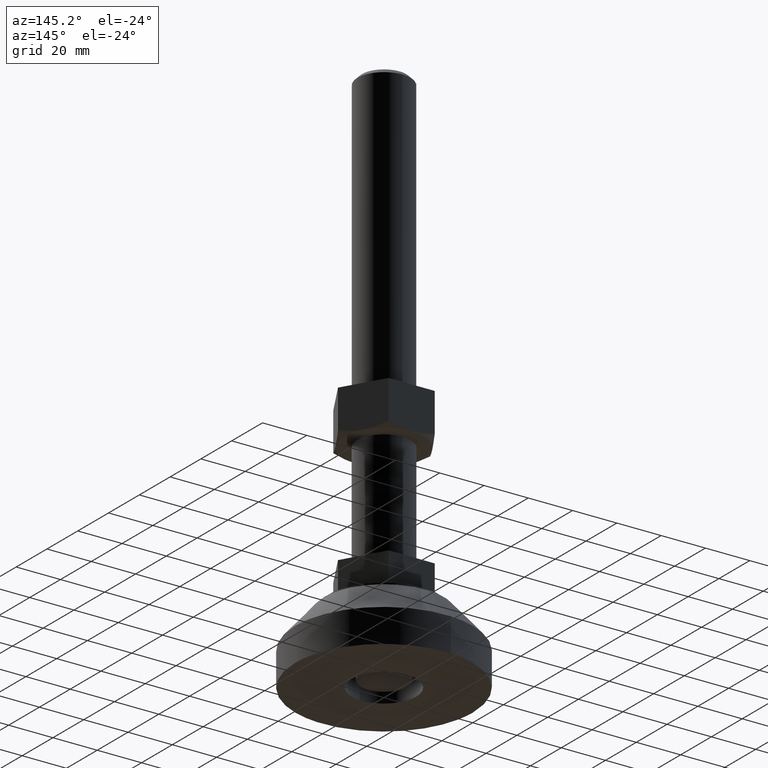
[diagram: clean part render]
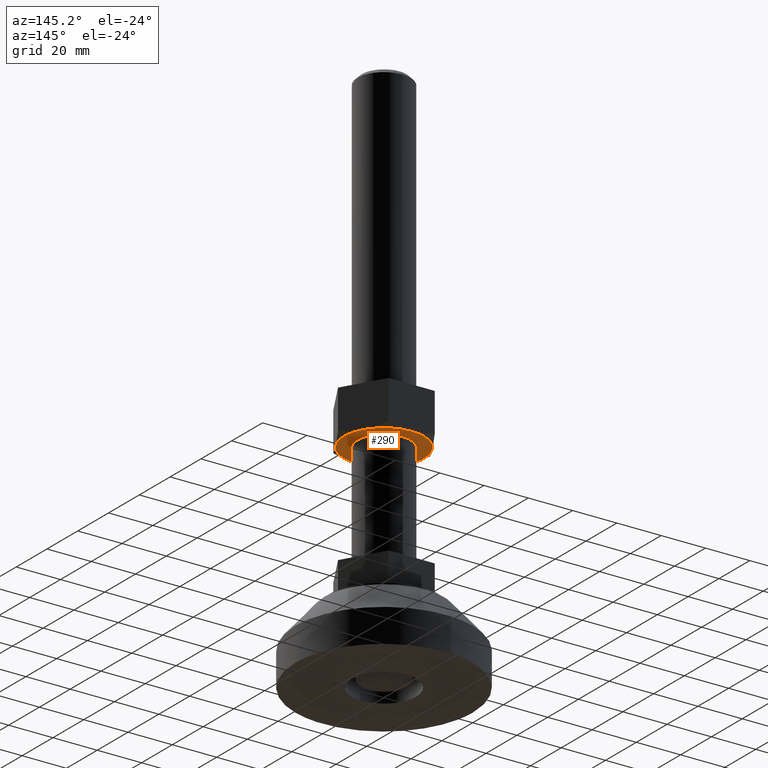
[diagram: same view with one face highlighted and labeled with its STEP entity id]
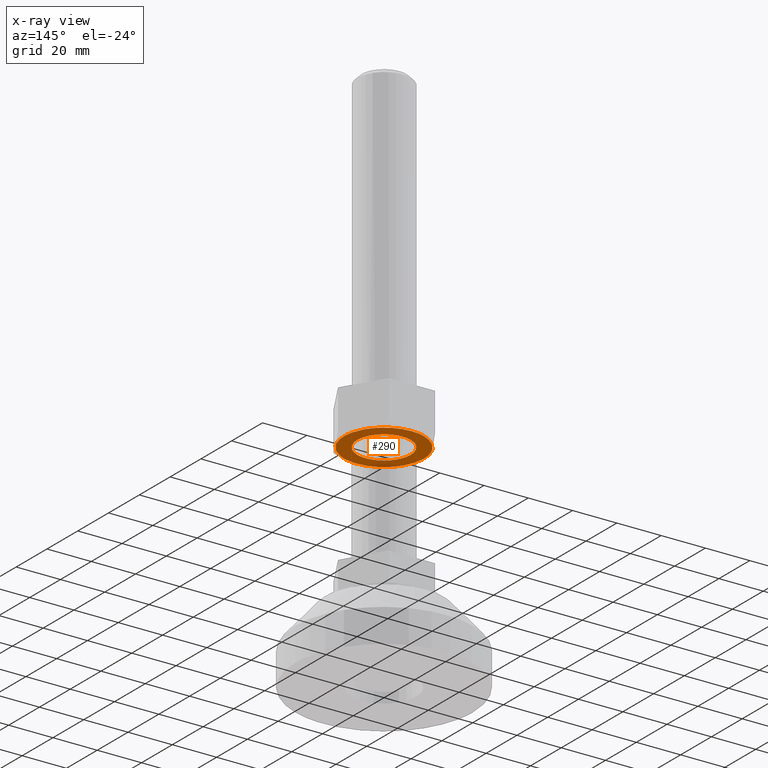
[diagram: x-ray of the same camera — body ghosted, the highlighted face saturated]
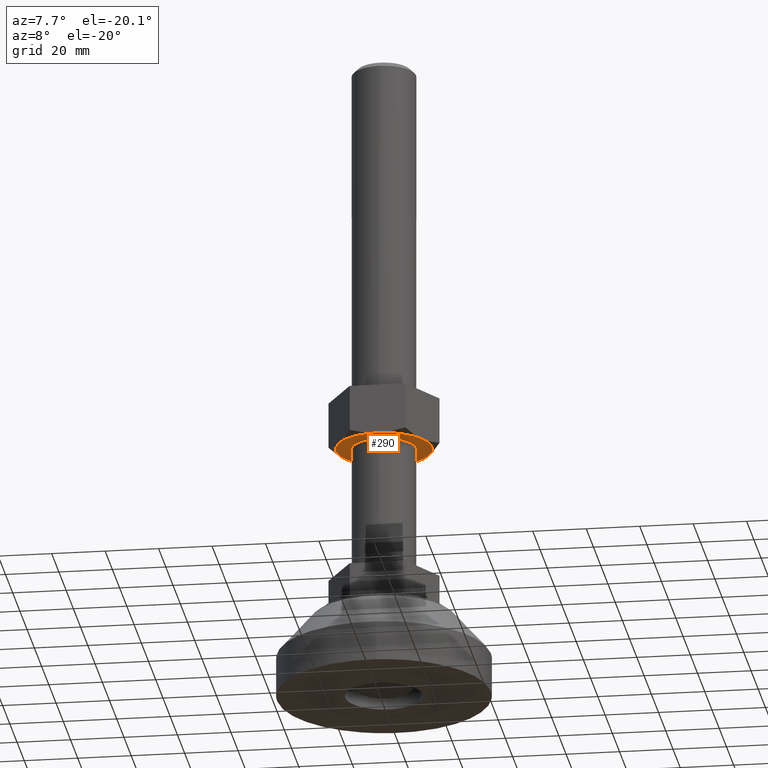
[diagram: same view with one face highlighted and labeled with its STEP entity id]
A machine part, auxiliary view. The second image highlights one B-rep face of the part: STEP entity #290.
The next image is the same camera in x-ray: the body ghosted, the highlighted face saturated — about 5% of this face is hidden behind the body in this view.
A second angle (auxiliary view) of the same face is appended — the face is thin or edge-on in the first view.
In plain terms, the highlighted face is a freeform B-spline surface patch.
Its self-contained STEP definition (entity closure, byte-faithful):
#57=CARTESIAN_POINT('',(0.732582474684845,11.977617581046241,97.500000000000000));
#58=VERTEX_POINT('',#57);
#64=CARTESIAN_POINT('',(12.000000000000460,1.136868E-013,97.500000000000000));
#65=VERTEX_POINT('',#64);
#66=CARTESIAN_POINT('',(12.000000000000460,1.136868E-013,97.500000000000000));
#67=CARTESIAN_POINT('',(12.000000000000455,11.288472802617189,97.500000000000014));
#68=CARTESIAN_POINT('',(0.732582474684844,11.977617581046246,97.499999999999986));
#76=(BOUNDED_CURVE()B_SPLINE_CURVE(2,(#66,#67,#68),.UNSPECIFIED.,.F.,.U.)B_SPLINE_CURVE_WITH_KNOTS((3,3),(0.500000000000000,0.739332962238135),.UNSPECIFIED.)CURVE()GEOMETRIC_REPRESENTATION_ITEM()RATIONAL_B_SPLINE_CURVE((1.0,0.719603993287657,0.976072041664986))REPRESENTATION_ITEM(''));
#77=EDGE_CURVE('',#65,#58,#76,.T.);
#79=CARTESIAN_POINT('',(-0.732582474683935,-11.977617581046010,97.500000000000000));
#80=VERTEX_POINT('',#79);
#81=CARTESIAN_POINT('',(-0.732582474683935,-11.977617581046012,97.499999999999986));
#82=CARTESIAN_POINT('',(-0.366633159716038,-11.999999999999890,97.499999999999986));
#83=CARTESIAN_POINT('',(4.547474E-013,-11.999999999999890,97.500000000000000));
#84=CARTESIAN_POINT('',(12.000000000000455,-11.999999999999885,97.500000000000000));
#85=CARTESIAN_POINT('',(12.000000000000460,1.136868E-013,97.500000000000000));
#93=(BOUNDED_CURVE()B_SPLINE_CURVE(2,(#81,#82,#83,#84,#85),.UNSPECIFIED.,.F.,.U.)B_SPLINE_CURVE_WITH_KNOTS((3,2,3),(0.239332962238135,0.250000000000000,0.500000000000000),.UNSPECIFIED.)CURVE()GEOMETRIC_REPRESENTATION_ITEM()RATIONAL_B_SPLINE_CURVE((0.976072041664986,0.987502787898891,1.0,0.707106781186548,1.0))REPRESENTATION_ITEM(''));
#94=EDGE_CURVE('',#80,#65,#93,.T.);
#138=CARTESIAN_POINT('',(-11.999999999999551,1.136868E-013,97.500000000000000));
#139=VERTEX_POINT('',#138);
#140=CARTESIAN_POINT('',(-11.999999999999551,1.136868E-013,97.500000000000000));
#141=CARTESIAN_POINT('',(-11.999999999999547,-11.288472802616958,97.500000000000014));
#142=CARTESIAN_POINT('',(-0.732582474683935,-11.977617581046012,97.499999999999986));
#150=(BOUNDED_CURVE()B_SPLINE_CURVE(2,(#140,#141,#142),.UNSPECIFIED.,.F.,.U.)B_SPLINE_CURVE_WITH_KNOTS((3,3),(0.0,0.239332962238135),.UNSPECIFIED.)CURVE()GEOMETRIC_REPRESENTATION_ITEM()RATIONAL_B_SPLINE_CURVE((1.0,0.719603993287657,0.976072041664986))REPRESENTATION_ITEM(''));
#151=EDGE_CURVE('',#139,#80,#150,.T.);
#153=CARTESIAN_POINT('',(0.732582474684844,11.977617581046246,97.499999999999986));
#154=CARTESIAN_POINT('',(0.366633159716948,12.000000000000114,97.499999999999986));
#155=CARTESIAN_POINT('',(4.547474E-013,12.000000000000121,97.500000000000000));
#156=CARTESIAN_POINT('',(-11.999999999999545,12.000000000000114,97.500000000000000));
#157=CARTESIAN_POINT('',(-11.999999999999551,1.136868E-013,97.500000000000000));
#165=(BOUNDED_CURVE()B_SPLINE_CURVE(2,(#153,#154,#155,#156,#157),.UNSPECIFIED.,.F.,.U.)B_SPLINE_CURVE_WITH_KNOTS((3,2,3),(0.739332962238135,0.750000000000000,1.0),.UNSPECIFIED.)CURVE()GEOMETRIC_REPRESENTATION_ITEM()RATIONAL_B_SPLINE_CURVE((0.976072041664986,0.987502787898891,1.0,0.707106781186548,1.0))REPRESENTATION_ITEM(''));
#166=EDGE_CURVE('',#58,#139,#165,.T.);
#187=CARTESIAN_POINT('',(-19.798199929945358,19.798199929945639,97.500000000000000));
#188=CARTESIAN_POINT('',(19.798200895540830,19.798199929945639,97.500000000000000));
#189=CARTESIAN_POINT('',(-19.798199929945358,-19.798200895540880,97.500000000000000));
#190=CARTESIAN_POINT('',(19.798200895540830,-19.798200895540880,97.500000000000000));
#191=B_SPLINE_SURFACE_WITH_KNOTS('',1,1,((#187,#189),(#188,#190)),.UNSPECIFIED.,.F.,.F.,.U.,(2,2),(2,2),(0.0,39.596400825486192),(0.0,39.596400825486512),.UNSPECIFIED.);
#192=CARTESIAN_POINT('',(-15.588457267899800,-8.999999999873090,97.500000000000000));
#193=VERTEX_POINT('',#192);
#194=CARTESIAN_POINT('',(-15.588457267899850,8.999999999872971,97.500000000000000));
#195=VERTEX_POINT('',#194);
#196=CARTESIAN_POINT('',(-15.588457267899759,-8.999999999873078,97.500000000000000));
#197=CARTESIAN_POINT('',(-20.784609690533131,-7.979728E-014,97.500000000000000));
#198=CARTESIAN_POINT('',(-15.588457267899830,8.999999999872959,97.500000000000000));
#206=(BOUNDED_CURVE()B_SPLINE_CURVE(2,(#196,#197,#198),.UNSPECIFIED.,.F.,.U.)CURVE()GEOMETRIC_REPRESENTATION_ITEM()QUASI_UNIFORM_CURVE()RATIONAL_B_SPLINE_CURVE((1.0,0.866025403784438,1.0))REPRESENTATION_ITEM(''));
#207=EDGE_CURVE('',#193,#195,#206,.T.);
#208=ORIENTED_EDGE('',*,*,#207,.T.);
#209=CARTESIAN_POINT('',(1.183421E-013,17.999999999745999,97.500000000000000));
#210=VERTEX_POINT('',#209);
#211=CARTESIAN_POINT('',(-15.588457267899830,8.999999999872959,97.500000000000000));
#212=CARTESIAN_POINT('',(-10.392304845266530,17.999999999745999,97.500000000000000));
#213=CARTESIAN_POINT('',(1.183421E-013,17.999999999745999,97.500000000000000));
#221=(BOUNDED_CURVE()B_SPLINE_CURVE(2,(#211,#212,#213),.UNSPECIFIED.,.F.,.U.)CURVE()GEOMETRIC_REPRESENTATION_ITEM()QUASI_UNIFORM_CURVE()RATIONAL_B_SPLINE_CURVE((1.0,0.866025403784438,1.0))REPRESENTATION_ITEM(''));
#222=EDGE_CURVE('',#195,#210,#221,.T.);
#223=ORIENTED_EDGE('',*,*,#222,.T.);
#224=CARTESIAN_POINT('',(15.588457267900051,8.999999999873030,97.500000000000000));
#225=VERTEX_POINT('',#224);
#226=CARTESIAN_POINT('',(1.183421E-013,17.999999999745999,97.500000000000000));
#227=CARTESIAN_POINT('',(10.392304845266720,17.999999999745999,97.500000000000014));
#228=CARTESIAN_POINT('',(15.588457267900029,8.999999999873021,97.500000000000000));
#236=(BOUNDED_CURVE()B_SPLINE_CURVE(2,(#226,#227,#228),.UNSPECIFIED.,.F.,.U.)CURVE()GEOMETRIC_REPRESENTATION_ITEM()QUASI_UNIFORM_CURVE()RATIONAL_B_SPLINE_CURVE((1.0,0.866025403784439,1.0))REPRESENTATION_ITEM(''));
#237=EDGE_CURVE('',#210,#225,#236,.T.);
#238=ORIENTED_EDGE('',*,*,#237,.T.);
#239=CARTESIAN_POINT('',(15.588457267900051,-8.999999999872999,97.500000000000000));
#240=VERTEX_POINT('',#239);
#241=CARTESIAN_POINT('',(15.588457267900029,8.999999999873021,97.500000000000000));
#242=CARTESIAN_POINT('',(20.784609690533362,1.734723E-014,97.500000000000000));
#243=CARTESIAN_POINT('',(15.588457267900051,-8.999999999872996,97.500000000000000));
#251=(BOUNDED_CURVE()B_SPLINE_CURVE(2,(#241,#242,#243),.UNSPECIFIED.,.F.,.U.)CURVE()GEOMETRIC_REPRESENTATION_ITEM()QUASI_UNIFORM_CURVE()RATIONAL_B_SPLINE_CURVE((1.0,0.866025403784438,1.0))REPRESENTATION_ITEM(''));
#252=EDGE_CURVE('',#225,#240,#251,.T.);
#253=ORIENTED_EDGE('',*,*,#252,.T.);
#254=CARTESIAN_POINT('',(1.183421E-013,-17.999999999745999,97.500000000000000));
#255=VERTEX_POINT('',#254);
#256=CARTESIAN_POINT('',(15.588457267900051,-8.999999999872996,97.500000000000000));
#257=CARTESIAN_POINT('',(10.392304845266738,-17.999999999745995,97.499999999999986));
#258=CARTESIAN_POINT('',(1.183421E-013,-17.999999999745999,97.500000000000000));
#266=(BOUNDED_CURVE()B_SPLINE_CURVE(2,(#256,#257,#258),.UNSPECIFIED.,.F.,.U.)CURVE()GEOMETRIC_REPRESENTATION_ITEM()QUASI_UNIFORM_CURVE()RATIONAL_B_SPLINE_CURVE((1.0,0.866025403784439,1.0))REPRESENTATION_ITEM(''));
#267=EDGE_CURVE('',#240,#255,#266,.T.);
#268=ORIENTED_EDGE('',*,*,#267,.T.);
#269=CARTESIAN_POINT('',(1.183421E-013,-17.999999999745999,97.500000000000000));
#270=CARTESIAN_POINT('',(-10.392304845266439,-17.999999999745999,97.500000000000000));
#271=CARTESIAN_POINT('',(-15.588457267899759,-8.999999999873078,97.500000000000000));
#279=(BOUNDED_CURVE()B_SPLINE_CURVE(2,(#269,#270,#271),.UNSPECIFIED.,.F.,.U.)CURVE()GEOMETRIC_REPRESENTATION_ITEM()QUASI_UNIFORM_CURVE()RATIONAL_B_SPLINE_CURVE((1.0,0.866025403784440,1.0))REPRESENTATION_ITEM(''));
#280=EDGE_CURVE('',#255,#193,#279,.T.);
#281=ORIENTED_EDGE('',*,*,#280,.T.);
#282=EDGE_LOOP('',(#208,#223,#238,#253,#268,#281));
#283=FACE_OUTER_BOUND('',#282,.T.);
#284=ORIENTED_EDGE('',*,*,#77,.T.);
#285=ORIENTED_EDGE('',*,*,#166,.T.);
#286=ORIENTED_EDGE('',*,*,#151,.T.);
#287=ORIENTED_EDGE('',*,*,#94,.T.);
#288=EDGE_LOOP('',(#284,#285,#286,#287));
#289=FACE_BOUND('',#288,.T.);
#290=ADVANCED_FACE('',(#283,#289),#191,.T.);